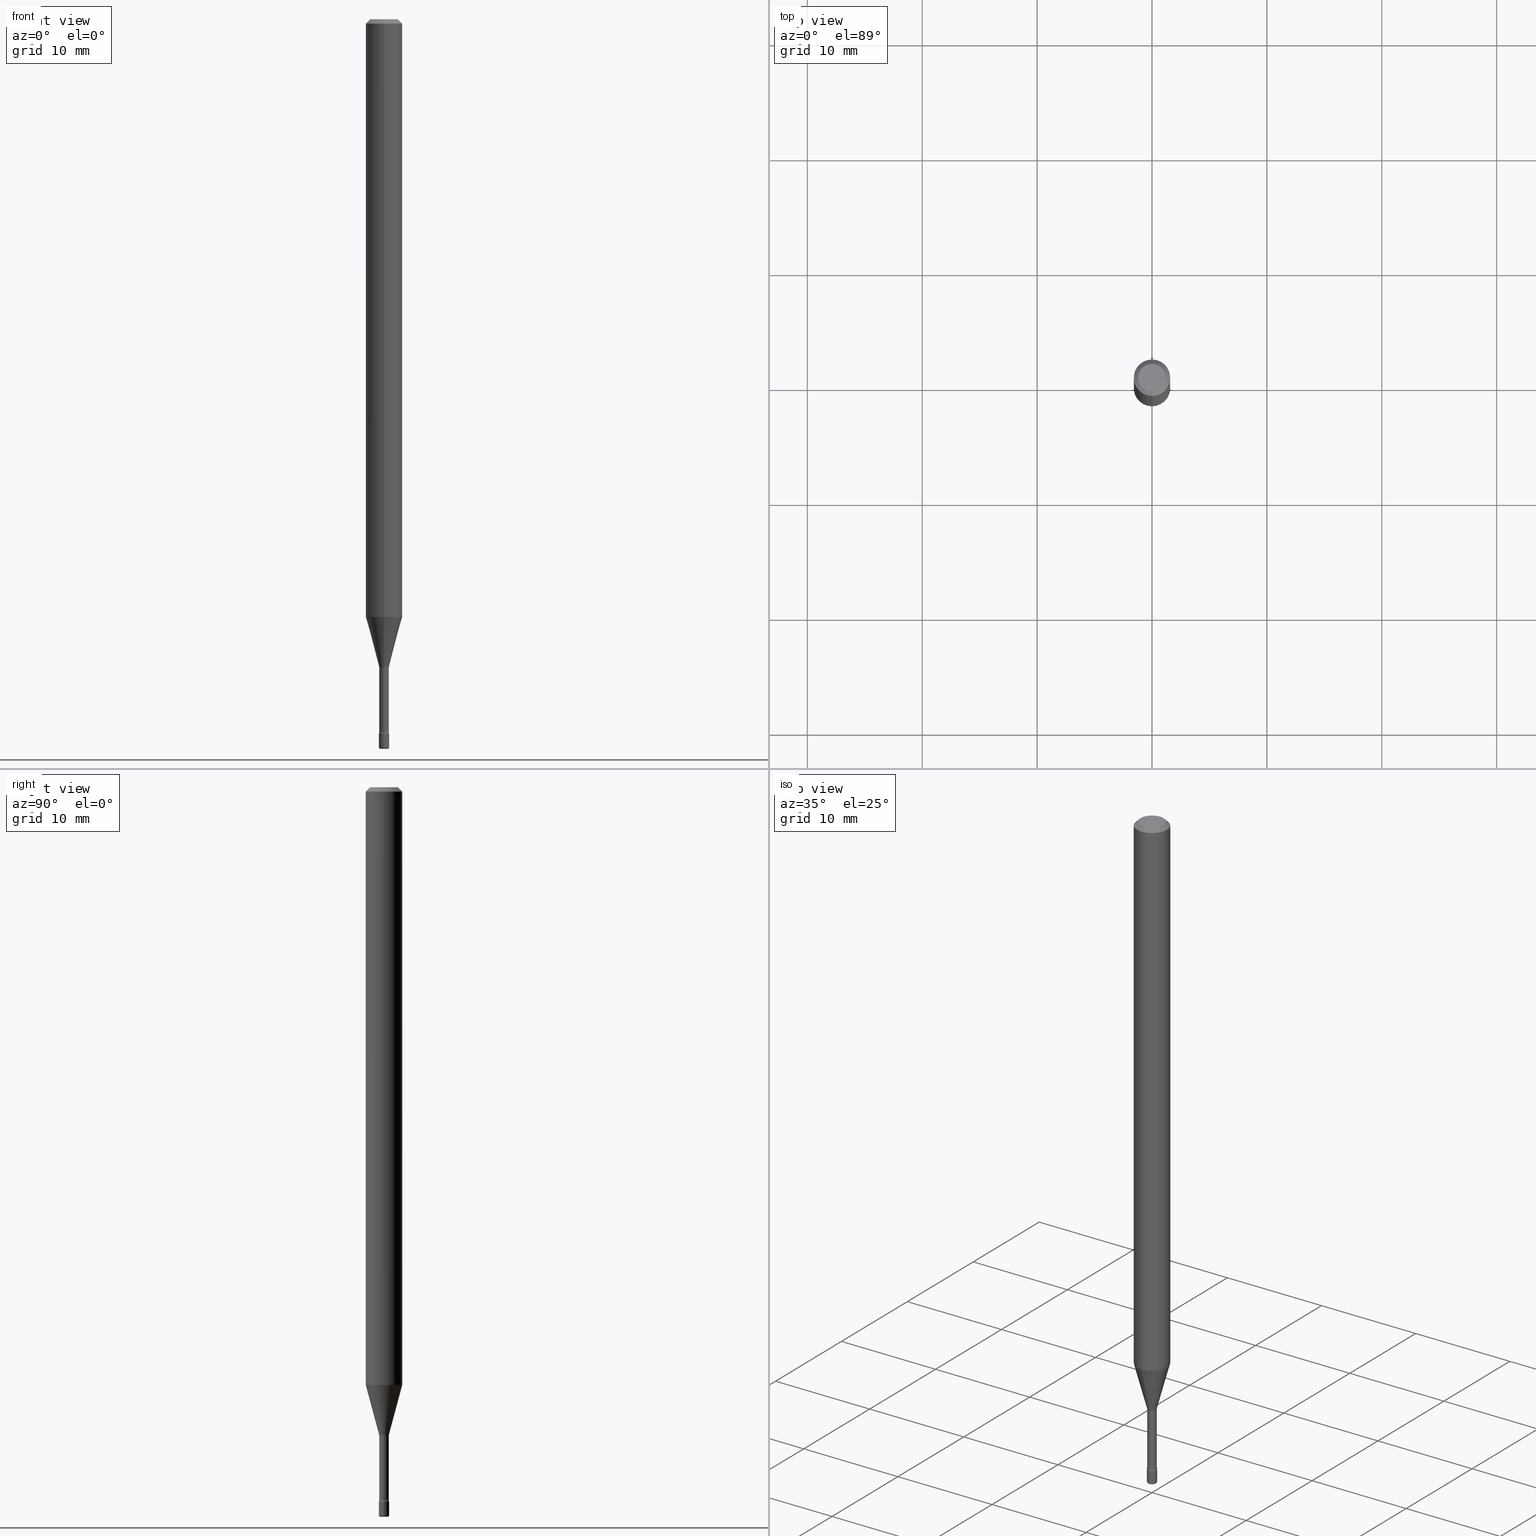
[diagram: canonical four-view strip — front | top / right | iso, engineering-drawing reading convention]
A machine part, canonical four-view strip (front | top / right | iso — engineering-drawing reading convention). The complete STEP part file that produces these views, byte-faithful:
ISO-10303-21;
HEADER;
FILE_DESCRIPTION (( 'STEP AP203' ),
    '1' );
FILE_NAME ('08897.STEP',
    '2024-03-06T20:09:40',
    ( '' ),
    ( '' ),
    'SwSTEP 2.0',
    'SolidWorks 2023',
    '' );
FILE_SCHEMA (( 'CONFIG_CONTROL_DESIGN' ));
ENDSEC;

DATA;
#1 = ORIENTED_EDGE ( 'NONE', *, *, #478, .F. ) ;
#2 = AXIS2_PLACEMENT_3D ( 'NONE', #526, #257, #182 ) ;
#3 = COORDINATED_UNIVERSAL_TIME_OFFSET ( 5, 0, .BEHIND. ) ;
#4 = ORIENTED_EDGE ( 'NONE', *, *, #179, .F. ) ;
#5 = DATE_AND_TIME ( #43, #37 ) ;
#6 = CC_DESIGN_DATE_AND_TIME_ASSIGNMENT ( #312, #525, ( #402 ) ) ;
#7 = LOCAL_TIME ( 15, 9, 40.00000000000000000, #530 ) ;
#8 = ORIENTED_EDGE ( 'NONE', *, *, #545, .F. ) ;
#9 = EDGE_CURVE ( 'NONE', #366, #84, #358, .T. ) ;
#10 = DIRECTION ( 'NONE',  ( 1.000000000000000000, -6.982962677686216223E-15, 0.000000000000000000 ) ) ;
#11 = AXIS2_PLACEMENT_3D ( 'NONE', #465, #330, #508 ) ;
#12 = CARTESIAN_POINT ( 'NONE',  ( -4.364351673553912750E-16, -0.06250000000000005551, -0.01499999999999981036 ) ) ;
#13 = DIRECTION ( 'NONE',  ( 1.000000000000000000, -7.105427357601001070E-15, 4.926314190067196143E-29 ) ) ;
#14 = EDGE_CURVE ( 'NONE', #51, #381, #115, .T. ) ;
#15 = ORIENTED_EDGE ( 'NONE', *, *, #136, .T. ) ;
#16 = CC_DESIGN_SECURITY_CLASSIFICATION ( #267, ( #151 ) ) ;
#17 = FACE_OUTER_BOUND ( 'NONE', #324, .T. ) ;
#18 = DIRECTION ( 'NONE',  ( -2.445543985909815616E-29, 3.491373677198440860E-15, 1.000000000000000000 ) ) ;
#19 = DIRECTION ( 'NONE',  ( -2.445543985909815616E-29, 3.491373677198440860E-15, 1.000000000000000000 ) ) ;
#20 = FACE_OUTER_BOUND ( 'NONE', #171, .T. ) ;
#21 = EDGE_CURVE ( 'NONE', #28, #524, #332, .T. ) ;
#22 = CARTESIAN_POINT ( 'NONE',  ( 5.433937078325363602E-29, -7.757744284349751158E-15, -2.221974787463810941 ) ) ;
#23 = ORIENTED_EDGE ( 'NONE', *, *, #220, .T. ) ;
#24 = CARTESIAN_POINT ( 'NONE',  ( 5.985468905514273330E-29, -8.545137074943184249E-15, -2.447500000000000231 ) ) ;
#25 = TOROIDAL_SURFACE ( 'NONE', #477, 0.03145000000000001267, 0.01499999999999995608 ) ;
#26 = EDGE_CURVE ( 'NONE', #563, #55, #237, .T. ) ;
#27 = DIRECTION ( 'NONE',  ( -6.982962677686265922E-15, -1.000000000000000000, 4.370956789862821150E-15 ) ) ;
#28 = VERTEX_POINT ( 'NONE', #32 ) ;
#29 = DIRECTION ( 'NONE',  ( -2.445468806185136597E-29, 3.491481338843145583E-15, 1.000000000000000000 ) ) ;
#30 = CLOSED_SHELL ( 'NONE', ( #274, #570, #539, #444, #471, #197 ) ) ;
#31 = EDGE_LOOP ( 'NONE', ( #114, #191, #217, #88 ) ) ;
#32 = CARTESIAN_POINT ( 'NONE',  ( -3.773273898774340269E-16, -0.04750000000000000749, 1.387459485416629947E-16 ) ) ;
#33 = EDGE_CURVE ( 'NONE', #354, #417, #349, .T. ) ;
#34 = ADVANCED_FACE ( 'NONE', ( #368 ), #120, .F. ) ;
#35 = DIRECTION ( 'NONE',  ( 1.000000000000000000, -6.982962677686265922E-15, 4.876176775795936353E-29 ) ) ;
#36 = CARTESIAN_POINT ( 'NONE',  ( -1.148697360478797885E-16, -0.01645000000000858623, -2.441986607215153704 ) ) ;
#37 = LOCAL_TIME ( 15, 9, 40.00000000000000000, #3 ) ;
#38 = DIRECTION ( 'NONE',  ( -2.445543985909815616E-29, 3.491373677198440860E-15, 1.000000000000000000 ) ) ;
#39 = SHAPE_DEFINITION_REPRESENTATION ( #359, #262 ) ;
#40 = LINE ( 'NONE', #192, #459 ) ;
#41 = CLOSED_SHELL ( 'NONE', ( #435, #378, #438, #185, #158, #280, #390, #265, #400, #34, #165, #101, #67, #493 ) ) ;
#42 = EDGE_LOOP ( 'NONE', ( #536, #546, #139, #82 ) ) ;
#43 = CALENDAR_DATE ( 2024, 6, 3 ) ;
#44 = ORIENTED_EDGE ( 'NONE', *, *, #331, .T. ) ;
#45 = APPLICATION_CONTEXT ( 'configuration controlled 3d designs of mechanical parts and assemblies' ) ;
#46 = FACE_OUTER_BOUND ( 'NONE', #163, .T. ) ;
#47 = PERSON_AND_ORGANIZATION ( #361, #49 ) ;
#48 = VERTEX_POINT ( 'NONE', #240 ) ;
#49 = ORGANIZATION ( 'UNSPECIFIED', 'UNSPECIFIED', '' ) ;
#50 = EDGE_LOOP ( 'NONE', ( #279, #62, #509, #228 ) ) ;
#51 = VERTEX_POINT ( 'NONE', #243 ) ;
#52 = PERSON_AND_ORGANIZATION ( #361, #49 ) ;
#53 = EDGE_CURVE ( 'NONE', #552, #448, #393, .T. ) ;
#54 = DIRECTION ( 'NONE',  ( -6.982962677686265922E-15, -1.000000000000000000, 0.000000000000000000 ) ) ;
#55 = VERTEX_POINT ( 'NONE', #296 ) ;
#56 = VECTOR ( 'NONE', #542, 39.37007874015748143 ) ;
#57 = EDGE_LOOP ( 'NONE', ( #58, #147 ) ) ;
#58 = ORIENTED_EDGE ( 'NONE', *, *, #220, .F. ) ;
#59 = DIRECTION ( 'NONE',  ( -2.445543985909815616E-29, 3.491373677198440860E-15, 1.000000000000000000 ) ) ;
#60 = EDGE_CURVE ( 'NONE', #51, #467, #271, .T. ) ;
#61 = CARTESIAN_POINT ( 'NONE',  ( 5.971802073066533793E-29, -8.526150668796594058E-15, -2.441986607215153704 ) ) ;
#62 = ORIENTED_EDGE ( 'NONE', *, *, #372, .T. ) ;
#63 = DIRECTION ( 'NONE',  ( -2.445543985909815616E-29, 3.491373677198440860E-15, 1.000000000000000000 ) ) ;
#64 = CARTESIAN_POINT ( 'NONE',  ( -1.169113584055446105E-44, 1.669184350826100908E-30, 4.780733988912460139E-16 ) ) ;
#65 = ORIENTED_EDGE ( 'NONE', *, *, #235, .F. ) ;
#66 = DIRECTION ( 'NONE',  ( -2.445468806185136597E-29, 3.491481338843145583E-15, 1.000000000000000000 ) ) ;
#67 = ADVANCED_FACE ( 'NONE', ( #499 ), #376, .T. ) ;
#68 = DIRECTION ( 'NONE',  ( -6.982962677686265133E-15, -1.000000000000000000, 0.000000000000000000 ) ) ;
#69 = CARTESIAN_POINT ( 'NONE',  ( -4.364351673553916201E-16, -0.06250000000000000000, 6.962842537161485677E-16 ) ) ;
#70 = VECTOR ( 'NONE', #245, 39.37007874015748854 ) ;
#71 = CARTESIAN_POINT ( 'NONE',  ( 5.971802073066533793E-29, -8.526150668796594058E-15, -2.441986607215153704 ) ) ;
#72 = EDGE_CURVE ( 'NONE', #381, #541, #291, .T. ) ;
#73 = CARTESIAN_POINT ( 'NONE',  ( -0.01750000000000000167, -8.503978279858106111E-15, -2.447500000000000231 ) ) ;
#74 = DIRECTION ( 'NONE',  ( -6.982962677686265922E-15, -1.000000000000000000, 3.483106191921935554E-15 ) ) ;
#75 = CIRCLE ( 'NONE', #229, 0.06250000000000000000 ) ;
#76 = ORIENTED_EDGE ( 'NONE', *, *, #121, .T. ) ;
#77 = EDGE_CURVE ( 'NONE', #552, #127, #155, .T. ) ;
#78 = DIRECTION ( 'NONE',  ( 1.000000000000000000, -7.105427357601001070E-15, 4.926314190067196143E-29 ) ) ;
#79 = CIRCLE ( 'NONE', #117, 0.01645000000000006180 ) ;
#80 = DIRECTION ( 'NONE',  ( 1.000000000000000000, -6.982962677686248567E-15, 0.000000000000000000 ) ) ;
#81 = DIRECTION ( 'NONE',  ( 1.000000000000000000, -6.982962677686216223E-15, 0.000000000000000000 ) ) ;
#82 = ORIENTED_EDGE ( 'NONE', *, *, #356, .F. ) ;
#83 = DIRECTION ( 'NONE',  ( 1.000000000000000000, -6.982962677686078962E-15, 0.000000000000000000 ) ) ;
#84 = VERTEX_POINT ( 'NONE', #73 ) ;
#85 = AXIS2_PLACEMENT_3D ( 'NONE', #553, #29, #423 ) ;
#86 = DIRECTION ( 'NONE',  ( 1.000000000000000000, -6.982962677686248567E-15, 0.000000000000000000 ) ) ;
#87 = APPROVAL ( #569, 'UNSPECIFIED' ) ;
#88 = ORIENTED_EDGE ( 'NONE', *, *, #456, .F. ) ;
#89 = DIRECTION ( 'NONE',  ( 1.000000000000000000, -6.982962677686265922E-15, 4.876176775795936353E-29 ) ) ;
#90 = VECTOR ( 'NONE', #337, 39.37007874015748143 ) ;
#91 = APPROVAL_ROLE ( '' ) ;
#92 = ORIENTED_EDGE ( 'NONE', *, *, #478, .T. ) ;
#93 = EDGE_CURVE ( 'NONE', #127, #552, #79, .T. ) ;
#94 = EDGE_LOOP ( 'NONE', ( #534, #466, #343, #122 ) ) ;
#95 = EDGE_LOOP ( 'NONE', ( #424, #65 ) ) ;
#96 = PERSON_AND_ORGANIZATION ( #361, #49 ) ;
#97 = CIRCLE ( 'NONE', #323, 0.04750000000000000749 ) ;
#98 = APPROVAL_STATUS ( 'not_yet_approved' ) ;
#99 = CYLINDRICAL_SURFACE ( 'NONE', #300, 0.06250000000000000000 ) ;
#100 = LINE ( 'NONE', #357, #216 ) ;
#101 = ADVANCED_FACE ( 'NONE', ( #328 ), #387, .F. ) ;
#102 = CC_DESIGN_APPROVAL ( #87, ( #267 ) ) ;
#103 = DIRECTION ( 'NONE',  ( -2.445543985909815897E-29, 3.491373677198440860E-15, 1.000000000000000000 ) ) ;
#104 = DIRECTION ( 'NONE',  ( 1.000000000000000000, -6.982962677686248567E-15, 0.000000000000000000 ) ) ;
#105 = CARTESIAN_POINT ( 'NONE',  ( 5.008814161251656206E-29, -7.150818802413359726E-15, -2.048139060311453541 ) ) ;
#106 = MANIFOLD_SOLID_BREP ( 'Body-Move/Copy2[2]', #41 ) ;
#107 = CARTESIAN_POINT ( 'NONE',  ( 5.433770030872598640E-29, -7.757983505809861225E-15, -2.221974787463810941 ) ) ;
#108 = APPROVAL ( #480, 'UNSPECIFIED' ) ;
#109 = DIRECTION ( 'NONE',  ( -2.445543985909815616E-29, 3.491373677198440860E-15, 1.000000000000000000 ) ) ;
#110 = CC_DESIGN_APPROVAL ( #167, ( #151 ) ) ;
#111 = CYLINDRICAL_SURFACE ( 'NONE', #181, 0.01645000000000003057 ) ;
#112 = DIRECTION ( 'NONE',  ( -6.982962677686266711E-15, -1.000000000000000000, 3.491373677198440860E-15 ) ) ;
#113 = EDGE_CURVE ( 'NONE', #524, #194, #248, .T. ) ;
#114 = ORIENTED_EDGE ( 'NONE', *, *, #121, .F. ) ;
#115 = CIRCLE ( 'NONE', #193, 0.01500000000000002720 ) ;
#116 = DIRECTION ( 'NONE',  ( -2.445468806185136597E-29, 3.491481338843145583E-15, 1.000000000000000000 ) ) ;
#117 = AXIS2_PLACEMENT_3D ( 'NONE', #555, #159, #68 ) ;
#118 = DIRECTION ( 'NONE',  ( -2.445543985909815616E-29, 3.491373677198440860E-15, 1.000000000000000000 ) ) ;
#119 = CARTESIAN_POINT ( 'NONE',  ( 5.433937078325363602E-29, -7.757744284349751158E-15, -2.221974787463810941 ) ) ;
#120 = PLANE ( 'NONE',  #278 ) ;
#121 = EDGE_CURVE ( 'NONE', #417, #84, #502, .T. ) ;
#122 = ORIENTED_EDGE ( 'NONE', *, *, #136, .F. ) ;
#123 = FACE_OUTER_BOUND ( 'NONE', #42, .T. ) ;
#124 = DIRECTION ( 'NONE',  ( -2.445543985909815616E-29, 3.491373677198440860E-15, 1.000000000000000000 ) ) ;
#125 = CONICAL_SURFACE ( 'NONE', #360, 0.01696111260566397771, 0.2617993877991500740 ) ;
#126 = DIRECTION ( 'NONE',  ( -6.982962677686266711E-15, -1.000000000000000000, 3.491481338843145583E-15 ) ) ;
#127 = VERTEX_POINT ( 'NONE', #416 ) ;
#128 = PERSON_AND_ORGANIZATION_ROLE ( 'design_owner' ) ;
#129 = ORIENTED_EDGE ( 'NONE', *, *, #545, .T. ) ;
#130 = DIRECTION ( 'NONE',  ( -2.445468806185136597E-29, 3.491481338843145583E-15, 1.000000000000000000 ) ) ;
#131 = CC_DESIGN_PERSON_AND_ORGANIZATION_ASSIGNMENT ( #247, #128, ( #145 ) ) ;
#132 = DATE_AND_TIME ( #144, #445 ) ;
#133 = ORIENTED_EDGE ( 'NONE', *, *, #33, .T. ) ;
#134 = LOCAL_TIME ( 15, 9, 40.00000000000000000, #353 ) ;
#135 = DIRECTION ( 'NONE',  ( -2.445543985909815616E-29, 3.491373677198440860E-15, 1.000000000000000000 ) ) ;
#136 = EDGE_CURVE ( 'NONE', #55, #563, #433, .T. ) ;
#137 = DIRECTION ( 'NONE',  ( -2.445468806185136597E-29, 3.491481338843145583E-15, 1.000000000000000000 ) ) ;
#138 = AXIS2_PLACEMENT_3D ( 'NONE', #105, #18, #27 ) ;
#139 = ORIENTED_EDGE ( 'NONE', *, *, #26, .F. ) ;
#140 = EDGE_LOOP ( 'NONE', ( #8, #439, #304, #283 ) ) ;
#141 = CALENDAR_DATE ( 2024, 6, 3 ) ;
#142 = AXIS2_PLACEMENT_3D ( 'NONE', #301, #375, #371 ) ;
#143 = ORIENTED_EDGE ( 'NONE', *, *, #317, .F. ) ;
#144 = CALENDAR_DATE ( 2024, 6, 3 ) ;
#145 = PRODUCT ( '08897', '08897', '', ( #562 ) ) ;
#146 = VECTOR ( 'NONE', #558, 39.37007874015748143 ) ;
#147 = ORIENTED_EDGE ( 'NONE', *, *, #485, .F. ) ;
#148 = DIRECTION ( 'NONE',  ( 7.105427357600999492E-15, 1.000000000000000000, 0.000000000000000000 ) ) ;
#149 = ORIENTED_EDGE ( 'NONE', *, *, #53, .T. ) ;
#150 = DIRECTION ( 'NONE',  ( 6.982962677686265922E-15, 1.000000000000000000, -3.483106191921935554E-15 ) ) ;
#151 = PRODUCT_DEFINITION_FORMATION_WITH_SPECIFIED_SOURCE ( 'ANY', '', #145, .NOT_KNOWN. ) ;
#152 = LINE ( 'NONE', #496, #494 ) ;
#153 = EDGE_LOOP ( 'NONE', ( #397, #298 ) ) ;
#154 = AXIS2_PLACEMENT_3D ( 'NONE', #206, #213, #156 ) ;
#155 = CIRCLE ( 'NONE', #395, 0.01645000000000006180 ) ;
#156 = DIRECTION ( 'NONE',  ( -6.982962677686264344E-15, -1.000000000000000000, 0.000000000000000000 ) ) ;
#157 = LINE ( 'NONE', #69, #407 ) ;
#158 = ADVANCED_FACE ( 'NONE', ( #335 ), #208, .T. ) ;
#159 = DIRECTION ( 'NONE',  ( -2.445543985909815616E-29, 3.491373677198440860E-15, 1.000000000000000000 ) ) ;
#160 = APPROVAL_PERSON_ORGANIZATION ( #96, #108, #91 ) ;
#161 = DIRECTION ( 'NONE',  ( 6.982962677686265922E-15, 1.000000000000000000, -3.491373677198440860E-15 ) ) ;
#162 = AXIS2_PLACEMENT_3D ( 'NONE', #166, #19, #326 ) ;
#163 = EDGE_LOOP ( 'NONE', ( #212, #352, #44, #207 ) ) ;
#164 = DIRECTION ( 'NONE',  ( -6.982962677686265133E-15, -1.000000000000000000, 3.491373677198440860E-15 ) ) ;
#165 = ADVANCED_FACE ( 'NONE', ( #222 ), #436, .F. ) ;
#166 = CARTESIAN_POINT ( 'NONE',  ( 6.629624659582138770E-46, -9.454485958241708768E-32, -2.709430112526296454E-17 ) ) ;
#167 = APPROVAL ( #98, 'UNSPECIFIED' ) ;
#168 = CARTESIAN_POINT ( 'NONE',  ( 2.234656903966058327E-16, 0.03144999999999224805, -2.221974787463810941 ) ) ;
#169 = DIRECTION ( 'NONE',  ( -6.982962677686265133E-15, -1.000000000000000000, 0.000000000000000000 ) ) ;
#170 =( LENGTH_UNIT ( ) NAMED_UNIT ( * ) SI_UNIT ( $, .METRE. ) );
#171 = EDGE_LOOP ( 'NONE', ( #230, #129, #256, #532 ) ) ;
#172 = ORIENTED_EDGE ( 'NONE', *, *, #317, .T. ) ;
#173 = LINE ( 'NONE', #568, #442 ) ;
#174 = ORIENTED_EDGE ( 'NONE', *, *, #294, .F. ) ;
#175 = DIRECTION ( 'NONE',  ( -6.982962677686265922E-15, -1.000000000000000000, 0.000000000000000000 ) ) ;
#176 = CONICAL_SURFACE ( 'NONE', #537, 0.06250000000000000000, 0.7853981633974480570 ) ;
#177 = DIRECTION ( 'NONE',  ( -2.445543985909815616E-29, 3.491373677198440860E-15, 1.000000000000000000 ) ) ;
#178 = PERSON_AND_ORGANIZATION_ROLE ( 'design_supplier' ) ;
#179 = EDGE_CURVE ( 'NONE', #417, #48, #195, .T. ) ;
#180 = LINE ( 'NONE', #319, #70 ) ;
#181 = AXIS2_PLACEMENT_3D ( 'NONE', #450, #63, #548 ) ;
#182 = DIRECTION ( 'NONE',  ( -6.982962677686266711E-15, -1.000000000000000000, 0.000000000000000000 ) ) ;
#183 = APPROVAL_DATE_TIME ( #266, #87 ) ;
#184 = ORIENTED_EDGE ( 'NONE', *, *, #77, .F. ) ;
#185 = ADVANCED_FACE ( 'NONE', ( #46 ), #176, .T. ) ;
#186 = AXIS2_PLACEMENT_3D ( 'NONE', #71, #505, #112 ) ;
#187 = COORDINATED_UNIVERSAL_TIME_OFFSET ( 5, 0, .BEHIND. ) ;
#188 = PERSON_AND_ORGANIZATION_ROLE ( 'classification_officer' ) ;
#189 = ORIENTED_EDGE ( 'NONE', *, *, #363, .F. ) ;
#190 = CONICAL_SURFACE ( 'NONE', #564, 0.01696111260566397771, 0.2617993877991500740 ) ;
#191 = ORIENTED_EDGE ( 'NONE', *, *, #179, .T. ) ;
#192 = CARTESIAN_POINT ( 'NONE',  ( 1.205159535236902748E-16, 0.01696111260565623391, -2.218092501787273019 ) ) ;
#193 = AXIS2_PLACEMENT_3D ( 'NONE', #411, #420, #202 ) ;
#194 = VERTEX_POINT ( 'NONE', #483 ) ;
#195 = CIRCLE ( 'NONE', #231, 0.01750000000000000167 ) ;
#196 = FACE_OUTER_BOUND ( 'NONE', #405, .T. ) ;
#197 = ADVANCED_FACE ( 'NONE', ( #473 ), #566, .T. ) ;
#198 = FACE_OUTER_BOUND ( 'NONE', #557, .T. ) ;
#199 = AXIS2_PLACEMENT_3D ( 'NONE', #275, #369, #150 ) ;
#200 = ORIENTED_EDGE ( 'NONE', *, *, #462, .T. ) ;
#201 = FACE_OUTER_BOUND ( 'NONE', #57, .T. ) ;
#202 = DIRECTION ( 'NONE',  ( -6.982962677686267499E-15, -1.000000000000000000, 0.000000000000000000 ) ) ;
#203 = CIRCLE ( 'NONE', #410, 0.005000000000000042605 ) ;
#204 = PRODUCT_RELATED_PRODUCT_CATEGORY ( 'detail', '', ( #145 ) ) ;
#205 = CARTESIAN_POINT ( 'NONE',  ( 8.728703347113945828E-17, 0.01249999999999127157, -2.500000000000000000 ) ) ;
#206 = CARTESIAN_POINT ( 'NONE',  ( -2.196141762131734293E-16, -0.03145000000000854057, -2.441986607215153704 ) ) ;
#207 = ORIENTED_EDGE ( 'NONE', *, *, #113, .F. ) ;
#208 = CYLINDRICAL_SURFACE ( 'NONE', #263, 0.06250000000000000000 ) ;
#209 = EDGE_CURVE ( 'NONE', #467, #51, #333, .T. ) ;
#210 = DIRECTION ( 'NONE',  ( -2.445543985909815616E-29, 3.491373677198440860E-15, 1.000000000000000000 ) ) ;
#211 = DIRECTION ( 'NONE',  ( 7.105427357601001859E-15, 1.000000000000000000, -3.491481338843145583E-15 ) ) ;
#212 = ORIENTED_EDGE ( 'NONE', *, *, #21, .F. ) ;
#213 = DIRECTION ( 'NONE',  ( -1.000000000000000000, 6.982962677686265922E-15, -4.883557194083112340E-29 ) ) ;
#214 = DIRECTION ( 'NONE',  ( 1.000000000000000000, 0.000000000000000000, 0.000000000000000000 ) ) ;
#215 = DIRECTION ( 'NONE',  ( 1.839019923739598738E-15, 0.2588190451025247363, 0.9659258262890673130 ) ) ;
#216 = VECTOR ( 'NONE', #236, 39.37007874015748143 ) ;
#217 = ORIENTED_EDGE ( 'NONE', *, *, #363, .T. ) ;
#218 = DIRECTION ( 'NONE',  ( -6.982962677686265922E-15, -1.000000000000000000, 3.491373677198440860E-15 ) ) ;
#219 = CALENDAR_DATE ( 2024, 6, 3 ) ;
#220 = EDGE_CURVE ( 'NONE', #384, #354, #341, .T. ) ;
#221 = AXIS2_PLACEMENT_3D ( 'NONE', #382, #571, #35 ) ;
#222 = FACE_OUTER_BOUND ( 'NONE', #95, .T. ) ;
#223 = APPROVAL_DATE_TIME ( #5, #167 ) ;
#224 = ORIENTED_EDGE ( 'NONE', *, *, #113, .T. ) ;
#225 = DIRECTION ( 'NONE',  ( 6.982962677686265922E-15, 1.000000000000000000, -3.483106191921935554E-15 ) ) ;
#226 = CALENDAR_DATE ( 2024, 6, 3 ) ;
#227 = EDGE_CURVE ( 'NONE', #524, #28, #97, .T. ) ;
#228 = ORIENTED_EDGE ( 'NONE', *, *, #418, .F. ) ;
#229 = AXIS2_PLACEMENT_3D ( 'NONE', #295, #210, #74 ) ;
#230 = ORIENTED_EDGE ( 'NONE', *, *, #209, .F. ) ;
#231 = AXIS2_PLACEMENT_3D ( 'NONE', #425, #391, #86 ) ;
#232 = APPROVAL_DATE_TIME ( #314, #108 ) ;
#233 = CARTESIAN_POINT ( 'NONE',  ( 0.000000000000000000, 0.000000000000000000, 0.000000000000000000 ) ) ;
#234 = ORIENTED_EDGE ( 'NONE', *, *, #559, .F. ) ;
#235 = EDGE_CURVE ( 'NONE', #510, #448, #549, .T. ) ;
#236 = DIRECTION ( 'NONE',  ( -2.445468806185136877E-29, 3.491481338843145188E-15, 1.000000000000000000 ) ) ;
#237 = CIRCLE ( 'NONE', #138, 0.06250000000000000000 ) ;
#238 = PLANE ( 'NONE',  #249 ) ;
#239 = FACE_OUTER_BOUND ( 'NONE', #94, .T. ) ;
#240 = CARTESIAN_POINT ( 'NONE',  ( 0.01750000000000002248, -8.833447787273158312E-15, -2.495000000000000107 ) ) ;
#241 = AXIS2_PLACEMENT_3D ( 'NONE', #107, #447, #446 ) ;
#242 = DIRECTION ( 'NONE',  ( -6.982962677686266711E-15, -1.000000000000000000, 0.000000000000000000 ) ) ;
#243 = CARTESIAN_POINT ( 'NONE',  ( -1.184388162973313820E-16, -0.01696111260567172499, -2.218092501787273019 ) ) ;
#244 = AXIS2_PLACEMENT_3D ( 'NONE', #233, #399, #89 ) ;
#245 = DIRECTION ( 'NONE',  ( -1.807323732225328562E-15, -0.2588190451025179639, 0.9659258262890690894 ) ) ;
#246 = CARTESIAN_POINT ( 'NONE',  ( 4.364351673553919652E-16, 0.06249999999999995143, -0.01500000000000024578 ) ) ;
#247 = PERSON_AND_ORGANIZATION ( #361, #49 ) ;
#248 = LINE ( 'NONE', #246, #90 ) ;
#249 = AXIS2_PLACEMENT_3D ( 'NONE', #205, #284, #404 ) ;
#250 = DIRECTION ( 'NONE',  ( -2.445543985909815616E-29, 3.491373677198440860E-15, 1.000000000000000000 ) ) ;
#251 = DIRECTION ( 'NONE',  ( -2.445543985909815616E-29, 3.491373677198440860E-15, 1.000000000000000000 ) ) ;
#252 = AXIS2_PLACEMENT_3D ( 'NONE', #22, #118, #561 ) ;
#253 = DIRECTION ( 'NONE',  ( 7.105427357601001859E-15, 1.000000000000000000, 0.000000000000000000 ) ) ;
#254 = EDGE_LOOP ( 'NONE', ( #517, #521, #92, #472 ) ) ;
#255 = DIRECTION ( 'NONE',  ( -2.445543985909815616E-29, 3.491373677198440860E-15, 1.000000000000000000 ) ) ;
#256 = ORIENTED_EDGE ( 'NONE', *, *, #497, .T. ) ;
#257 = DIRECTION ( 'NONE',  ( -2.445543985909815616E-29, 3.491373677198440860E-15, 1.000000000000000000 ) ) ;
#258 = EDGE_CURVE ( 'NONE', #467, #55, #40, .T. ) ;
#259 = CARTESIAN_POINT ( 'NONE',  ( 1.168842800325963307E-16, 0.01644999999999224166, -2.221974787463810941 ) ) ;
#260 = CIRCLE ( 'NONE', #487, 0.01500000000000002720 ) ;
#261 = CARTESIAN_POINT ( 'NONE',  ( -1.169113584055446105E-44, 1.669184350826100908E-30, 4.780733988912460139E-16 ) ) ;
#262 = ADVANCED_BREP_SHAPE_REPRESENTATION ( '08897', ( #303, #106, #355 ), #392 ) ;
#263 = AXIS2_PLACEMENT_3D ( 'NONE', #261, #512, #218 ) ;
#264 = CARTESIAN_POINT ( 'NONE',  ( -1.169113584055446105E-44, 1.669184350826100908E-30, 4.780733988912460139E-16 ) ) ;
#265 = ADVANCED_FACE ( 'NONE', ( #345 ), #99, .T. ) ;
#266 = DATE_AND_TIME ( #226, #7 ) ;
#267 = SECURITY_CLASSIFICATION ( '', '', #351 ) ;
#268 = ORIENTED_EDGE ( 'NONE', *, *, #418, .T. ) ;
#269 = ORIENTED_EDGE ( 'NONE', *, *, #485, .T. ) ;
#270 = COORDINATED_UNIVERSAL_TIME_OFFSET ( 5, 0, .BEHIND. ) ;
#271 = CIRCLE ( 'NONE', #403, 0.01696111260566397771 ) ;
#272 = DATE_TIME_ROLE ( 'classification_date' ) ;
#273 = DIRECTION ( 'NONE',  ( -6.982962677686265922E-15, -1.000000000000000000, 3.491373677198440860E-15 ) ) ;
#274 = ADVANCED_FACE ( 'NONE', ( #443 ), #388, .T. ) ;
#275 = CARTESIAN_POINT ( 'NONE',  ( 3.668315978864730028E-31, -5.237060515797671471E-17, -0.01500000000000002720 ) ) ;
#276 = TOROIDAL_SURFACE ( 'NONE', #85, 0.01250000000000000069, 0.005000000000000041737 ) ;
#277 = CARTESIAN_POINT ( 'NONE',  ( -1.148697360478847435E-16, -0.01645000000000775703, -2.221974787463810941 ) ) ;
#278 = AXIS2_PLACEMENT_3D ( 'NONE', #550, #282, #161 ) ;
#279 = ORIENTED_EDGE ( 'NONE', *, *, #26, .T. ) ;
#280 = ADVANCED_FACE ( 'NONE', ( #123 ), #125, .T. ) ;
#281 = DIRECTION ( 'NONE',  ( -2.445543985909815897E-29, 3.491373677198440860E-15, 1.000000000000000000 ) ) ;
#282 = DIRECTION ( 'NONE',  ( 2.445543985909815336E-29, -3.491373677198440860E-15, -1.000000000000000000 ) ) ;
#283 = ORIENTED_EDGE ( 'NONE', *, *, #72, .T. ) ;
#284 = DIRECTION ( 'NONE',  ( 2.438088387897960049E-29, -3.491481338843145188E-15, -1.000000000000000000 ) ) ;
#285 = DIRECTION ( 'NONE',  ( -1.000000000000000000, 7.105427357601060234E-15, 0.000000000000000000 ) ) ;
#286 = ORIENTED_EDGE ( 'NONE', *, *, #462, .F. ) ;
#287 = UNCERTAINTY_MEASURE_WITH_UNIT (LENGTH_MEASURE( 1.000000000000000082E-05 ), #513, 'distance_accuracy_value', 'NONE');
#288 = DIRECTION ( 'NONE',  ( -2.445543985909815616E-29, 3.491373677198440860E-15, 1.000000000000000000 ) ) ;
#289 = CARTESIAN_POINT ( 'NONE',  ( 5.008814161251656206E-29, -7.150818802413359726E-15, -2.048139060311453541 ) ) ;
#290 = CC_DESIGN_DATE_AND_TIME_ASSIGNMENT ( #132, #272, ( #267 ) ) ;
#291 = CIRCLE ( 'NONE', #252, 0.01644999999999999934 ) ;
#292 = CARTESIAN_POINT ( 'NONE',  ( 1.243449787580772020E-16, 0.01749999999999143213, -2.447500000000000231 ) ) ;
#293 = DIRECTION ( 'NONE',  ( -2.445543985909815616E-29, 3.491373677198440860E-15, 1.000000000000000000 ) ) ;
#294 = EDGE_CURVE ( 'NONE', #48, #417, #367, .T. ) ;
#295 = CARTESIAN_POINT ( 'NONE',  ( 3.668315978864730028E-31, -5.237060515797671471E-17, -0.01500000000000002720 ) ) ;
#296 = CARTESIAN_POINT ( 'NONE',  ( 4.440892098501126102E-16, 0.06249999999999283906, -2.048139060311453985 ) ) ;
#297 = CARTESIAN_POINT ( 'NONE',  ( 5.433770030872598640E-29, -7.757983505809861225E-15, -2.221974787463810941 ) ) ;
#298 = ORIENTED_EDGE ( 'NONE', *, *, #456, .T. ) ;
#299 = CARTESIAN_POINT ( 'NONE',  ( 3.668315978864730028E-31, -5.237060515797671471E-17, -0.01500000000000002720 ) ) ;
#300 = AXIS2_PLACEMENT_3D ( 'NONE', #264, #38, #273 ) ;
#301 = CARTESIAN_POINT ( 'NONE',  ( 5.985284903138122000E-29, -8.545400576818598390E-15, -2.447500000000000231 ) ) ;
#302 = CARTESIAN_POINT ( 'NONE',  ( 6.101444671431915719E-29, -8.711245940413648329E-15, -2.495000000000000107 ) ) ;
#303 = MANIFOLD_SOLID_BREP ( 'Body-Move/Copy2[1]', #30 ) ;
#304 = ORIENTED_EDGE ( 'NONE', *, *, #14, .T. ) ;
#305 = CARTESIAN_POINT ( 'NONE',  ( 3.668315978864730028E-31, -5.237060515797671471E-17, -0.01500000000000002720 ) ) ;
#306 = EDGE_LOOP ( 'NONE', ( #23, #133, #174, #143 ) ) ;
#307 = CC_DESIGN_APPROVAL ( #108, ( #402 ) ) ;
#308 = EDGE_CURVE ( 'NONE', #28, #431, #173, .T. ) ;
#309 = CARTESIAN_POINT ( 'NONE',  ( 1.222018468595695173E-16, 0.01749999999999145642, -2.447500000000000231 ) ) ;
#310 = APPROVAL_ROLE ( '' ) ;
#311 = ORIENTED_EDGE ( 'NONE', *, *, #235, .T. ) ;
#312 = DATE_AND_TIME ( #219, #134 ) ;
#313 = CIRCLE ( 'NONE', #347, 0.01499999999999995608 ) ;
#314 = DATE_AND_TIME ( #141, #374 ) ;
#315 = DIRECTION ( 'NONE',  ( -6.982962677686265133E-15, -1.000000000000000000, 3.491373677198440860E-15 ) ) ;
#316 = AXIS2_PLACEMENT_3D ( 'NONE', #520, #432, #54 ) ;
#317 = EDGE_CURVE ( 'NONE', #384, #48, #203, .T. ) ;
#318 = CARTESIAN_POINT ( 'NONE',  ( 0.01750000000000000167, -8.667602423678108373E-15, -2.447500000000000231 ) ) ;
#319 = CARTESIAN_POINT ( 'NONE',  ( -1.184388162973313820E-16, -0.01696111260567172499, -2.218092501787273019 ) ) ;
#320 = TOROIDAL_SURFACE ( 'NONE', #511, 0.03145000000000000573, 0.01500000000000002720 ) ;
#321 = CC_DESIGN_PERSON_AND_ORGANIZATION_ASSIGNMENT ( #489, #488, ( #151 ) ) ;
#322 = CARTESIAN_POINT ( 'NONE',  ( 0.01250000000000000069, -8.815990380578941699E-15, -2.500000000000000000 ) ) ;
#323 = AXIS2_PLACEMENT_3D ( 'NONE', #348, #177, #315 ) ;
#324 = EDGE_LOOP ( 'NONE', ( #475, #200, #311, #457 ) ) ;
#325 = LINE ( 'NONE', #406, #56 ) ;
#326 = DIRECTION ( 'NONE',  ( -6.982962677686265133E-15, -1.000000000000000000, 3.491373677198440860E-15 ) ) ;
#327 = CARTESIAN_POINT ( 'NONE',  ( 5.985284903138122000E-29, -8.545400576818598390E-15, -2.447500000000000231 ) ) ;
#328 = FACE_OUTER_BOUND ( 'NONE', #377, .T. ) ;
#329 = APPROVAL_PERSON_ORGANIZATION ( #389, #87, #533 ) ;
#330 = DIRECTION ( 'NONE',  ( -2.445468806185136597E-29, 3.491481338843145583E-15, 1.000000000000000000 ) ) ;
#331 = EDGE_CURVE ( 'NONE', #431, #194, #490, .T. ) ;
#332 = CIRCLE ( 'NONE', #162, 0.04750000000000000749 ) ;
#333 = CIRCLE ( 'NONE', #2, 0.01696111260566397771 ) ;
#334 = DIRECTION ( 'NONE',  ( -2.445543985909815616E-29, 3.491373677198440860E-15, 1.000000000000000000 ) ) ;
#335 = FACE_OUTER_BOUND ( 'NONE', #50, .T. ) ;
#336 = EDGE_LOOP ( 'NONE', ( #556, #76, #427, #189 ) ) ;
#337 = DIRECTION ( 'NONE',  ( 4.937700262164546464E-15, 0.7071067811865449082, -0.7071067811865501263 ) ) ;
#338 = AXIS2_PLACEMENT_3D ( 'NONE', #327, #500, #104 ) ;
#339 = APPLICATION_PROTOCOL_DEFINITION ( 'international standard', 'config_control_design', 1994, #45 ) ;
#340 = DIRECTION ( 'NONE',  ( -4.851104656540962697E-15, -0.7071067811865497932, -0.7071067811865452413 ) ) ;
#341 = CIRCLE ( 'NONE', #515, 0.01250000000000000069 ) ;
#342 =( NAMED_UNIT ( * ) SI_UNIT ( $, .STERADIAN. ) SOLID_ANGLE_UNIT ( ) );
#343 = ORIENTED_EDGE ( 'NONE', *, *, #356, .T. ) ;
#344 = DIRECTION ( 'NONE',  ( -6.982962677686265922E-15, -1.000000000000000000, 3.483106191921935554E-15 ) ) ;
#345 = FACE_OUTER_BOUND ( 'NONE', #486, .T. ) ;
#346 = TOROIDAL_SURFACE ( 'NONE', #454, 0.01250000000000000069, 0.005000000000000041737 ) ;
#347 = AXIS2_PLACEMENT_3D ( 'NONE', #458, #13, #148 ) ;
#348 = CARTESIAN_POINT ( 'NONE',  ( 6.629624659582138770E-46, -9.454485958241708768E-32, -2.709430112526296454E-17 ) ) ;
#349 = CIRCLE ( 'NONE', #421, 0.005000000000000042605 ) ;
#350 = AXIS2_PLACEMENT_3D ( 'NONE', #64, #109, #379 ) ;
#351 = SECURITY_CLASSIFICATION_LEVEL ( 'unclassified' ) ;
#352 = ORIENTED_EDGE ( 'NONE', *, *, #308, .T. ) ;
#353 = COORDINATED_UNIVERSAL_TIME_OFFSET ( 5, 0, .BEHIND. ) ;
#354 = VERTEX_POINT ( 'NONE', #476 ) ;
#355 = AXIS2_PLACEMENT_3D ( 'NONE', #461, #503, #214 ) ;
#356 = EDGE_CURVE ( 'NONE', #51, #563, #180, .T. ) ;
#357 = CARTESIAN_POINT ( 'NONE',  ( 0.01750000000000000167, -1.222018468595096625E-16, 8.533309357642889039E-31 ) ) ;
#358 = CIRCLE ( 'NONE', #11, 0.01750000000000000167 ) ;
#359 = PRODUCT_DEFINITION_SHAPE ( 'NONE', 'NONE',  #402 ) ;
#360 = AXIS2_PLACEMENT_3D ( 'NONE', #468, #255, #565 ) ;
#361 = PERSON ( 'UNSPECIFIED', 'UNSPECIFIED', 'UNSPECIFIED', ('UNSPECIFIED'), ('UNSPECIFIED'), ('UNSPECIFIED') ) ;
#362 = CARTESIAN_POINT ( 'NONE',  ( -0.01750000000000002248, -8.586900961655630292E-15, -2.495000000000000107 ) ) ;
#363 = EDGE_CURVE ( 'NONE', #48, #366, #100, .T. ) ;
#364 = CARTESIAN_POINT ( 'NONE',  ( 6.101444671431915719E-29, -8.711245940413648329E-15, -2.495000000000000107 ) ) ;
#365 = CIRCLE ( 'NONE', #398, 0.01750000000000000167 ) ;
#366 = VERTEX_POINT ( 'NONE', #318 ) ;
#367 = CIRCLE ( 'NONE', #504, 0.01750000000000000167 ) ;
#368 = FACE_OUTER_BOUND ( 'NONE', #449, .T. ) ;
#369 = DIRECTION ( 'NONE',  ( 2.445543985909815616E-29, -3.491373677198440860E-15, -1.000000000000000000 ) ) ;
#370 = CARTESIAN_POINT ( 'NONE',  ( -0.01250000000000000069, -8.622428098443636122E-15, -2.495000000000000107 ) ) ;
#371 = DIRECTION ( 'NONE',  ( 1.000000000000000000, -6.982962677686265922E-15, 4.876176775795935793E-29 ) ) ;
#372 = EDGE_CURVE ( 'NONE', #55, #194, #495, .T. ) ;
#373 = CARTESIAN_POINT ( 'NONE',  ( 5.424442777937523841E-29, -7.744189774331321425E-15, -2.218092501787273019 ) ) ;
#374 = LOCAL_TIME ( 15, 9, 40.00000000000000000, #187 ) ;
#375 = DIRECTION ( 'NONE',  ( -2.438088387897960049E-29, 3.491481338843145188E-15, 1.000000000000000000 ) ) ;
#376 = CYLINDRICAL_SURFACE ( 'NONE', #350, 0.01645000000000003057 ) ;
#377 = EDGE_LOOP ( 'NONE', ( #286, #184, #149, #531 ) ) ;
#378 = ADVANCED_FACE ( 'NONE', ( #551 ), #111, .T. ) ;
#379 = DIRECTION ( 'NONE',  ( -6.982962677686266711E-15, -1.000000000000000000, 3.491373677198440466E-15 ) ) ;
#380 = APPLICATION_PROTOCOL_DEFINITION ( 'international standard', 'config_control_design', 1994, #484 ) ;
#381 = VERTEX_POINT ( 'NONE', #277 ) ;
#382 = CARTESIAN_POINT ( 'NONE',  ( 0.000000000000000000, 0.000000000000000000, 0.000000000000000000 ) ) ;
#383 = FACE_OUTER_BOUND ( 'NONE', #153, .T. ) ;
#384 = VERTEX_POINT ( 'NONE', #322 ) ;
#385 = DIRECTION ( 'NONE',  ( 2.445543985909815616E-29, -3.491373677198440860E-15, -1.000000000000000000 ) ) ;
#386 = DIMENSIONAL_EXPONENTS ( 1.000000000000000000, 0.000000000000000000, 0.000000000000000000, 0.000000000000000000, 0.000000000000000000, 0.000000000000000000, 0.000000000000000000 ) ;
#387 = TOROIDAL_SURFACE ( 'NONE', #186, 0.03145000000000001267, 0.01499999999999995608 ) ;
#388 = CYLINDRICAL_SURFACE ( 'NONE', #244, 0.01750000000000000167 ) ;
#389 = PERSON_AND_ORGANIZATION ( #361, #49 ) ;
#390 = ADVANCED_FACE ( 'NONE', ( #239 ), #190, .T. ) ;
#391 = DIRECTION ( 'NONE',  ( -2.445468806185136597E-29, 3.491481338843145583E-15, 1.000000000000000000 ) ) ;
#392 =( GEOMETRIC_REPRESENTATION_CONTEXT ( 3 ) GLOBAL_UNCERTAINTY_ASSIGNED_CONTEXT ( ( #287 ) ) GLOBAL_UNIT_ASSIGNED_CONTEXT ( ( #513, #470, #342 ) ) REPRESENTATION_CONTEXT ( 'NONE', 'WORKASPACE' ) );
#393 = CIRCLE ( 'NONE', #154, 0.01499999999999995608 ) ;
#394 = ORIENTED_EDGE ( 'NONE', *, *, #72, .F. ) ;
#395 = AXIS2_PLACEMENT_3D ( 'NONE', #455, #251, #169 ) ;
#396 = PERSON_AND_ORGANIZATION ( #361, #49 ) ;
#397 = ORIENTED_EDGE ( 'NONE', *, *, #9, .T. ) ;
#398 = AXIS2_PLACEMENT_3D ( 'NONE', #24, #334, #175 ) ;
#399 = DIRECTION ( 'NONE',  ( -2.445468806185136597E-29, 3.491481338843145583E-15, 1.000000000000000000 ) ) ;
#400 = ADVANCED_FACE ( 'NONE', ( #196 ), #464, .T. ) ;
#401 = CARTESIAN_POINT ( 'NONE',  ( 5.424442777937523841E-29, -7.744189774331321425E-15, -2.218092501787273019 ) ) ;
#402 = PRODUCT_DEFINITION ( 'UNKNOWN', '', #151, #527 ) ;
#403 = AXIS2_PLACEMENT_3D ( 'NONE', #373, #460, #451 ) ;
#404 = DIRECTION ( 'NONE',  ( -1.000000000000000000, 6.982962677686265922E-15, -4.876176775795935793E-29 ) ) ;
#405 = EDGE_LOOP ( 'NONE', ( #518, #482, #224, #560 ) ) ;
#406 = CARTESIAN_POINT ( 'NONE',  ( 1.168842800325366731E-16, 0.01645000000000003057, 4.206403019013315977E-16 ) ) ;
#407 = VECTOR ( 'NONE', #413, 39.37007874015748143 ) ;
#408 = CARTESIAN_POINT ( 'NONE',  ( -0.01750000000000000167, 1.243449787580175444E-16, -8.608136407946085539E-31 ) ) ;
#409 = CARTESIAN_POINT ( 'NONE',  ( 4.440892098500625669E-16, 0.06250000000000000000, 2.598625440663435095E-16 ) ) ;
#410 = AXIS2_PLACEMENT_3D ( 'NONE', #514, #126, #83 ) ;
#411 = CARTESIAN_POINT ( 'NONE',  ( -2.196141762131787294E-16, -0.03145000000000775647, -2.221974787463810941 ) ) ;
#412 = EDGE_CURVE ( 'NONE', #127, #541, #325, .T. ) ;
#413 = DIRECTION ( 'NONE',  ( -2.445543985909815897E-29, 3.491373677198440860E-15, 1.000000000000000000 ) ) ;
#414 = DIRECTION ( 'NONE',  ( -6.982962677686265922E-15, -1.000000000000000000, 4.370956789862821150E-15 ) ) ;
#415 = TOROIDAL_SURFACE ( 'NONE', #241, 0.03145000000000000573, 0.01500000000000002720 ) ;
#416 = CARTESIAN_POINT ( 'NONE',  ( 1.206146293953368650E-16, 0.01644999999999153389, -2.441986607215153704 ) ) ;
#417 = VERTEX_POINT ( 'NONE', #362 ) ;
#418 = EDGE_CURVE ( 'NONE', #563, #431, #157, .T. ) ;
#419 = CARTESIAN_POINT ( 'NONE',  ( -4.364351673553416753E-16, -0.06250000000000717482, -2.048139060311453541 ) ) ;
#420 = DIRECTION ( 'NONE',  ( -1.000000000000000000, 6.982962677686265922E-15, -4.883557194083112340E-29 ) ) ;
#421 = AXIS2_PLACEMENT_3D ( 'NONE', #370, #211, #285 ) ;
#422 = AXIS2_PLACEMENT_3D ( 'NONE', #309, #491, #522 ) ;
#423 = DIRECTION ( 'NONE',  ( 1.000000000000000000, -6.982962677686232001E-15, 4.883557194083101130E-29 ) ) ;
#424 = ORIENTED_EDGE ( 'NONE', *, *, #519, .F. ) ;
#425 = CARTESIAN_POINT ( 'NONE',  ( 6.101444671431915719E-29, -8.711245940413648329E-15, -2.495000000000000107 ) ) ;
#426 = DIRECTION ( 'NONE',  ( -6.982962677686266711E-15, -1.000000000000000000, 0.000000000000000000 ) ) ;
#427 = ORIENTED_EDGE ( 'NONE', *, *, #9, .F. ) ;
#428 = CARTESIAN_POINT ( 'NONE',  ( 6.113672015462842613E-29, -8.728703347107864943E-15, -2.500000000000000000 ) ) ;
#429 = VECTOR ( 'NONE', #103, 39.37007874015748143 ) ;
#430 = FACE_OUTER_BOUND ( 'NONE', #306, .T. ) ;
#431 = VERTEX_POINT ( 'NONE', #12 ) ;
#432 = DIRECTION ( 'NONE',  ( -2.445543985909815616E-29, 3.491373677198440860E-15, 1.000000000000000000 ) ) ;
#433 = CIRCLE ( 'NONE', #469, 0.06250000000000000000 ) ;
#434 = PERSON_AND_ORGANIZATION ( #361, #49 ) ;
#435 = ADVANCED_FACE ( 'NONE', ( #20 ), #415, .F. ) ;
#436 = PLANE ( 'NONE',  #422 ) ;
#437 = APPROVAL_PERSON_ORGANIZATION ( #434, #167, #310 ) ;
#438 = ADVANCED_FACE ( 'NONE', ( #17 ), #25, .F. ) ;
#439 = ORIENTED_EDGE ( 'NONE', *, *, #60, .F. ) ;
#440 = ORIENTED_EDGE ( 'NONE', *, *, #227, .T. ) ;
#441 = PERSON_AND_ORGANIZATION_ROLE ( 'creator' ) ;
#442 = VECTOR ( 'NONE', #340, 39.37007874015748143 ) ;
#443 = FACE_OUTER_BOUND ( 'NONE', #336, .T. ) ;
#444 = ADVANCED_FACE ( 'NONE', ( #201 ), #238, .T. ) ;
#445 = LOCAL_TIME ( 15, 9, 40.00000000000000000, #270 ) ;
#446 = DIRECTION ( 'NONE',  ( -6.982962677686265133E-15, -1.000000000000000000, 3.491373677198440860E-15 ) ) ;
#447 = DIRECTION ( 'NONE',  ( -2.445543985909815616E-29, 3.491373677198440860E-15, 1.000000000000000000 ) ) ;
#448 = VERTEX_POINT ( 'NONE', #538 ) ;
#449 = EDGE_LOOP ( 'NONE', ( #440, #540 ) ) ;
#450 = CARTESIAN_POINT ( 'NONE',  ( -1.169113584055446105E-44, 1.669184350826100908E-30, 4.780733988912460139E-16 ) ) ;
#451 = DIRECTION ( 'NONE',  ( -6.982962677686266711E-15, -1.000000000000000000, 0.000000000000000000 ) ) ;
#452 = EDGE_LOOP ( 'NONE', ( #528, #529, #394, #1 ) ) ;
#453 = DIRECTION ( 'NONE',  ( -6.982962677686266711E-15, -1.000000000000000000, 3.491373677198440860E-15 ) ) ;
#454 = AXIS2_PLACEMENT_3D ( 'NONE', #364, #66, #544 ) ;
#455 = CARTESIAN_POINT ( 'NONE',  ( 5.971985660947334510E-29, -8.525887760502116071E-15, -2.441986607215153704 ) ) ;
#456 = EDGE_CURVE ( 'NONE', #84, #366, #572, .T. ) ;
#457 = ORIENTED_EDGE ( 'NONE', *, *, #53, .F. ) ;
#458 = CARTESIAN_POINT ( 'NONE',  ( 2.234656903966113054E-16, 0.03144999999999149171, -2.441986607215153704 ) ) ;
#459 = VECTOR ( 'NONE', #215, 39.37007874015748854 ) ;
#460 = DIRECTION ( 'NONE',  ( -2.445543985909815616E-29, 3.491373677198440860E-15, 1.000000000000000000 ) ) ;
#461 = CARTESIAN_POINT ( 'NONE',  ( 0.000000000000000000, 0.000000000000000000, 0.000000000000000000 ) ) ;
#462 = EDGE_CURVE ( 'NONE', #127, #510, #313, .T. ) ;
#463 = PLANE ( 'NONE',  #142 ) ;
#464 = CONICAL_SURFACE ( 'NONE', #199, 0.06250000000000000000, 0.7853981633974480570 ) ;
#465 = CARTESIAN_POINT ( 'NONE',  ( 5.985284903138122000E-29, -8.545400576818598390E-15, -2.447500000000000231 ) ) ;
#466 = ORIENTED_EDGE ( 'NONE', *, *, #209, .T. ) ;
#467 = VERTEX_POINT ( 'NONE', #492 ) ;
#468 = CARTESIAN_POINT ( 'NONE',  ( 5.424442777937523841E-29, -7.744189774331321425E-15, -2.218092501787273019 ) ) ;
#469 = AXIS2_PLACEMENT_3D ( 'NONE', #289, #293, #414 ) ;
#470 =( NAMED_UNIT ( * ) PLANE_ANGLE_UNIT ( ) SI_UNIT ( $, .RADIAN. ) );
#471 = ADVANCED_FACE ( 'NONE', ( #198 ), #346, .T. ) ;
#472 = ORIENTED_EDGE ( 'NONE', *, *, #497, .F. ) ;
#473 = FACE_OUTER_BOUND ( 'NONE', #31, .T. ) ;
#474 = CARTESIAN_POINT ( 'NONE',  ( 3.840629472727447874E-16, 0.04750000000000000749, -1.929345507921889422E-16 ) ) ;
#475 = ORIENTED_EDGE ( 'NONE', *, *, #93, .F. ) ;
#476 = CARTESIAN_POINT ( 'NONE',  ( -0.01250000000000000069, -8.613393233396740725E-15, -2.500000000000000000 ) ) ;
#477 = AXIS2_PLACEMENT_3D ( 'NONE', #61, #59, #453 ) ;
#478 = EDGE_CURVE ( 'NONE', #552, #381, #152, .T. ) ;
#479 = ORIENTED_EDGE ( 'NONE', *, *, #372, .F. ) ;
#480 = APPROVAL_STATUS ( 'not_yet_approved' ) ;
#481 = ORIENTED_EDGE ( 'NONE', *, *, #33, .F. ) ;
#482 = ORIENTED_EDGE ( 'NONE', *, *, #227, .F. ) ;
#483 = CARTESIAN_POINT ( 'NONE',  ( 4.440892098501130047E-16, 0.06249999999999995143, -0.01500000000000024578 ) ) ;
#484 = APPLICATION_CONTEXT ( 'configuration controlled 3d designs of mechanical parts and assemblies' ) ;
#485 = EDGE_CURVE ( 'NONE', #354, #384, #543, .T. ) ;
#486 = EDGE_LOOP ( 'NONE', ( #479, #15, #268, #234 ) ) ;
#487 = AXIS2_PLACEMENT_3D ( 'NONE', #168, #78, #253 ) ;
#488 = PERSON_AND_ORGANIZATION_ROLE ( 'creator' ) ;
#489 = PERSON_AND_ORGANIZATION ( #361, #49 ) ;
#490 = CIRCLE ( 'NONE', #567, 0.06250000000000000000 ) ;
#491 = DIRECTION ( 'NONE',  ( -2.445543985909815336E-29, 3.491373677198440860E-15, 1.000000000000000000 ) ) ;
#492 = CARTESIAN_POINT ( 'NONE',  ( 2.823025816869015904E-16, 0.01696111260565623738, -2.218092501787273019 ) ) ;
#493 = ADVANCED_FACE ( 'NONE', ( #507 ), #320, .F. ) ;
#494 = VECTOR ( 'NONE', #281, 39.37007874015748143 ) ;
#495 = LINE ( 'NONE', #409, #429 ) ;
#496 = CARTESIAN_POINT ( 'NONE',  ( -1.148697360479392982E-16, -0.01645000000000003057, 5.355064958811605287E-16 ) ) ;
#497 = EDGE_CURVE ( 'NONE', #541, #381, #501, .T. ) ;
#498 = CARTESIAN_POINT ( 'NONE',  ( 6.113672015462842613E-29, -8.728703347107864943E-15, -2.500000000000000000 ) ) ;
#499 = FACE_OUTER_BOUND ( 'NONE', #254, .T. ) ;
#500 = DIRECTION ( 'NONE',  ( -2.445468806185136597E-29, 3.491481338843145583E-15, 1.000000000000000000 ) ) ;
#501 = CIRCLE ( 'NONE', #523, 0.01644999999999999934 ) ;
#502 = LINE ( 'NONE', #408, #146 ) ;
#503 = DIRECTION ( 'NONE',  ( 0.000000000000000000, 0.000000000000000000, 1.000000000000000000 ) ) ;
#504 = AXIS2_PLACEMENT_3D ( 'NONE', #302, #130, #80 ) ;
#505 = DIRECTION ( 'NONE',  ( -2.445543985909815616E-29, 3.491373677198440860E-15, 1.000000000000000000 ) ) ;
#506 = CC_DESIGN_PERSON_AND_ORGANIZATION_ASSIGNMENT ( #47, #441, ( #402 ) ) ;
#507 = FACE_OUTER_BOUND ( 'NONE', #140, .T. ) ;
#508 = DIRECTION ( 'NONE',  ( 1.000000000000000000, -6.982962677686248567E-15, 0.000000000000000000 ) ) ;
#509 = ORIENTED_EDGE ( 'NONE', *, *, #331, .F. ) ;
#510 = VERTEX_POINT ( 'NONE', #292 ) ;
#511 = AXIS2_PLACEMENT_3D ( 'NONE', #297, #250, #164 ) ;
#512 = DIRECTION ( 'NONE',  ( -2.445543985909815616E-29, 3.491373677198440860E-15, 1.000000000000000000 ) ) ;
#513 =( CONVERSION_BASED_UNIT ( 'INCH', #516 ) LENGTH_UNIT ( ) NAMED_UNIT ( #386 ) );
#514 = CARTESIAN_POINT ( 'NONE',  ( 0.01250000000000000069, -8.798532973884726663E-15, -2.495000000000000107 ) ) ;
#515 = AXIS2_PLACEMENT_3D ( 'NONE', #428, #137, #10 ) ;
#516 = LENGTH_MEASURE_WITH_UNIT ( LENGTH_MEASURE( 0.02539999999999999897 ), #170 );
#517 = ORIENTED_EDGE ( 'NONE', *, *, #412, .F. ) ;
#518 = ORIENTED_EDGE ( 'NONE', *, *, #308, .F. ) ;
#519 = EDGE_CURVE ( 'NONE', #448, #510, #365, .T. ) ;
#520 = CARTESIAN_POINT ( 'NONE',  ( 5.985468905514273330E-29, -8.545137074943184249E-15, -2.447500000000000231 ) ) ;
#521 = ORIENTED_EDGE ( 'NONE', *, *, #93, .T. ) ;
#522 = DIRECTION ( 'NONE',  ( -6.982962677686265922E-15, -1.000000000000000000, 3.491373677198440860E-15 ) ) ;
#523 = AXIS2_PLACEMENT_3D ( 'NONE', #119, #124, #426 ) ;
#524 = VERTEX_POINT ( 'NONE', #474 ) ;
#525 = DATE_TIME_ROLE ( 'creation_date' ) ;
#526 = CARTESIAN_POINT ( 'NONE',  ( 5.424442777937523841E-29, -7.744189774331321425E-15, -2.218092501787273019 ) ) ;
#527 = DESIGN_CONTEXT ( 'detailed design', #45, 'design' ) ;
#528 = ORIENTED_EDGE ( 'NONE', *, *, #77, .T. ) ;
#529 = ORIENTED_EDGE ( 'NONE', *, *, #412, .T. ) ;
#530 = COORDINATED_UNIVERSAL_TIME_OFFSET ( 5, 0, .BEHIND. ) ;
#531 = ORIENTED_EDGE ( 'NONE', *, *, #519, .T. ) ;
#532 = ORIENTED_EDGE ( 'NONE', *, *, #14, .F. ) ;
#533 = APPROVAL_ROLE ( '' ) ;
#534 = ORIENTED_EDGE ( 'NONE', *, *, #258, .F. ) ;
#535 = CC_DESIGN_PERSON_AND_ORGANIZATION_ASSIGNMENT ( #52, #178, ( #151 ) ) ;
#536 = ORIENTED_EDGE ( 'NONE', *, *, #60, .T. ) ;
#537 = AXIS2_PLACEMENT_3D ( 'NONE', #299, #385, #225 ) ;
#538 = CARTESIAN_POINT ( 'NONE',  ( -1.222018468594496105E-16, -0.01750000000000852263, -2.447500000000000231 ) ) ;
#539 = ADVANCED_FACE ( 'NONE', ( #383 ), #463, .T. ) ;
#540 = ORIENTED_EDGE ( 'NONE', *, *, #21, .T. ) ;
#541 = VERTEX_POINT ( 'NONE', #259 ) ;
#542 = DIRECTION ( 'NONE',  ( -2.445543985909815897E-29, 3.491373677198440860E-15, 1.000000000000000000 ) ) ;
#543 = CIRCLE ( 'NONE', #554, 0.01250000000000000069 ) ;
#544 = DIRECTION ( 'NONE',  ( 1.000000000000000000, -6.982962677686232001E-15, 4.883557194083101130E-29 ) ) ;
#545 = EDGE_CURVE ( 'NONE', #467, #541, #260, .T. ) ;
#546 = ORIENTED_EDGE ( 'NONE', *, *, #258, .T. ) ;
#547 = CC_DESIGN_PERSON_AND_ORGANIZATION_ASSIGNMENT ( #396, #188, ( #267 ) ) ;
#548 = DIRECTION ( 'NONE',  ( -6.982962677686266711E-15, -1.000000000000000000, 3.491373677198440466E-15 ) ) ;
#549 = CIRCLE ( 'NONE', #316, 0.01750000000000000167 ) ;
#550 = CARTESIAN_POINT ( 'NONE',  ( 3.316907271900976589E-16, 0.04750000000000000749, 5.964929921606561324E-17 ) ) ;
#551 = FACE_OUTER_BOUND ( 'NONE', #452, .T. ) ;
#552 = VERTEX_POINT ( 'NONE', #36 ) ;
#553 = CARTESIAN_POINT ( 'NONE',  ( 6.101444671431915719E-29, -8.711245940413648329E-15, -2.495000000000000107 ) ) ;
#554 = AXIS2_PLACEMENT_3D ( 'NONE', #498, #116, #81 ) ;
#555 = CARTESIAN_POINT ( 'NONE',  ( 5.971985660947334510E-29, -8.525887760502116071E-15, -2.441986607215153704 ) ) ;
#556 = ORIENTED_EDGE ( 'NONE', *, *, #294, .T. ) ;
#557 = EDGE_LOOP ( 'NONE', ( #481, #269, #172, #4 ) ) ;
#558 = DIRECTION ( 'NONE',  ( -2.445468806185136877E-29, 3.491481338843145188E-15, 1.000000000000000000 ) ) ;
#559 = EDGE_CURVE ( 'NONE', #194, #431, #75, .T. ) ;
#560 = ORIENTED_EDGE ( 'NONE', *, *, #559, .T. ) ;
#561 = DIRECTION ( 'NONE',  ( -6.982962677686266711E-15, -1.000000000000000000, 0.000000000000000000 ) ) ;
#562 = MECHANICAL_CONTEXT ( 'NONE', #484, 'mechanical' ) ;
#563 = VERTEX_POINT ( 'NONE', #419 ) ;
#564 = AXIS2_PLACEMENT_3D ( 'NONE', #401, #288, #242 ) ;
#565 = DIRECTION ( 'NONE',  ( -6.982962677686266711E-15, -1.000000000000000000, 0.000000000000000000 ) ) ;
#566 = CYLINDRICAL_SURFACE ( 'NONE', #221, 0.01750000000000000167 ) ;
#567 = AXIS2_PLACEMENT_3D ( 'NONE', #305, #135, #344 ) ;
#568 = CARTESIAN_POINT ( 'NONE',  ( -4.287811248607203282E-16, -0.06250000000000005551, -0.01499999999999981036 ) ) ;
#569 = APPROVAL_STATUS ( 'not_yet_approved' ) ;
#570 = ADVANCED_FACE ( 'NONE', ( #430 ), #276, .T. ) ;
#571 = DIRECTION ( 'NONE',  ( -2.445468806185136597E-29, 3.491481338843145583E-15, 1.000000000000000000 ) ) ;
#572 = CIRCLE ( 'NONE', #338, 0.01750000000000000167 ) ;
ENDSEC;
END-ISO-10303-21;
